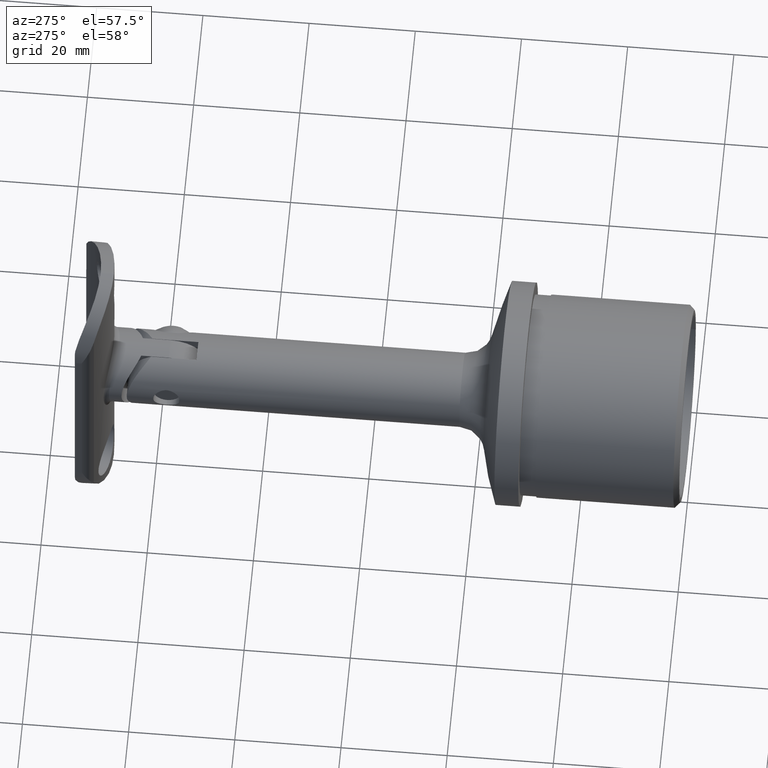
[diagram: clean part render]
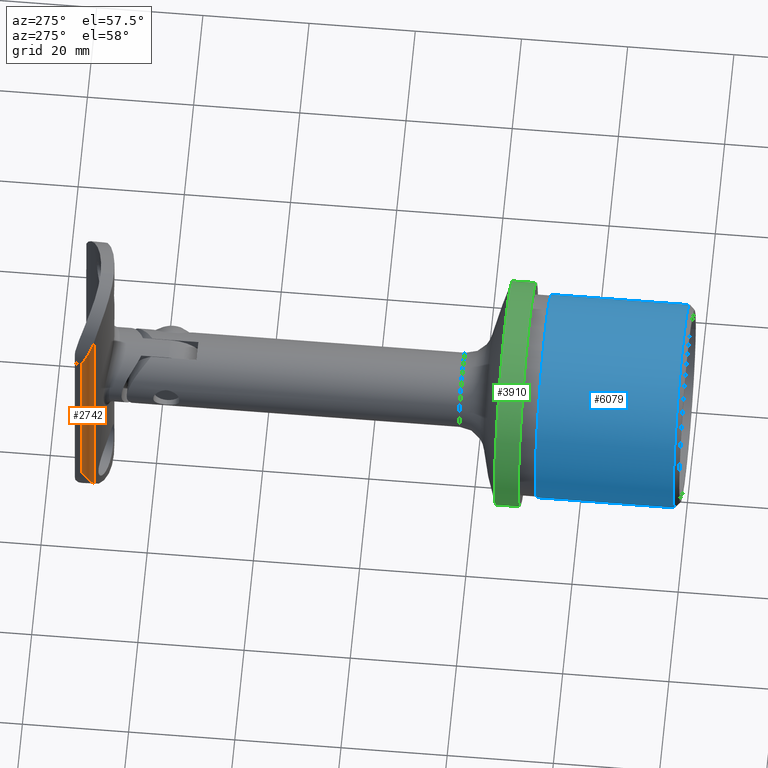
[diagram: same view with three faces highlighted in distinct colors, each labeled with its STEP entity id]
A machine part, auxiliary view with three faces highlighted in distinct colors.
Their STEP definitions:

[orange] entity #2742 — the highlighted cylindrical surface (edge-blend (fillet) strip) has radius 2.5 mm, axis along (-0, -0, -1).
#786 = CARTESIAN_POINT ( 'NONE',  ( -12.49999999999999822, 4.794987841692083919, -19.47337140423151780 ) ) ;
#899 = CARTESIAN_POINT ( 'NONE',  ( -11.40638105405752434, 2.923791834929124533, -24.13830932038523258 ) ) ;
#967 = CARTESIAN_POINT ( 'NONE',  ( -11.92967504011799207, 3.400286981363787486, 22.76441849119572325 ) ) ;
#1281 = VERTEX_POINT ( 'NONE', #6884 ) ;
#1647 = ORIENTED_EDGE ( 'NONE', *, *, #13596, .T. ) ;
#1913 = EDGE_CURVE ( 'NONE', #9623, #8205, #6051, .T. ) ;
#2061 = CARTESIAN_POINT ( 'NONE',  ( -12.28333152114375082, 3.965015650576368511, -21.36649920857138341 ) ) ;
#2742 = ADVANCED_FACE ( 'NONE', ( #11199 ), #10652, .T. ) ;
#2997 = DIRECTION ( 'NONE',  ( -0.000000000000000000, -0.000000000000000000, -1.000000000000000000 ) ) ;
#3266 = CARTESIAN_POINT ( 'NONE',  ( -12.36503220955341575, 4.168564775691902646, 20.89264939591394210 ) ) ;
#3390 = CARTESIAN_POINT ( 'NONE',  ( -12.49999999999999645, 5.006685687123313855, 31.50000000000000000 ) ) ;
#3827 = CARTESIAN_POINT ( 'NONE',  ( -11.17924528301885978, 2.802285414378435924, 24.59235861708639703 ) ) ;
#3845 = B_SPLINE_CURVE_WITH_KNOTS ( 'NONE', 3,
 ( #9312, #786, #11607, #11486, #2061, #5631, #10392, #11703, #899, #5746 ),
 .UNSPECIFIED., .F., .F.,
 ( 4, 2, 2, 2, 4 ),
 ( -2.236068598631906190E-05, 0.001533295713240233641, 0.003088952112466786595, 0.004644608511693338465, 0.006200264910919890335 ),
 .UNSPECIFIED. ) ;
#4125 = CARTESIAN_POINT ( 'NONE',  ( -9.999999999999994671, 5.006685687123313855, 31.50000000000000000 ) ) ;
#4545 = CARTESIAN_POINT ( 'NONE',  ( -12.28334954160289527, 3.965053949932768163, 21.36640832990507022 ) ) ;
#5434 = AXIS2_PLACEMENT_3D ( 'NONE', #4125, #2997, #7649 ) ;
#5543 = CARTESIAN_POINT ( 'NONE',  ( -11.17924528301885978, 2.802285414378435924, 24.59235861708639703 ) ) ;
#5631 = CARTESIAN_POINT ( 'NONE',  ( -12.06559692858170862, 3.581207301064043502, -22.30180594818838102 ) ) ;
#5701 = CARTESIAN_POINT ( 'NONE',  ( -11.40638732152775781, 2.923795187716187183, 24.13829679157727526 ) ) ;
#5746 = CARTESIAN_POINT ( 'NONE',  ( -11.17924528301885978, 2.802285414378435924, -24.59235861708640059 ) ) ;
#5766 = CARTESIAN_POINT ( 'NONE',  ( -12.49999999999999822, 4.954163077805698201, 19.11744428138103302 ) ) ;
#6051 = LINE ( 'NONE', #3390, #13525 ) ;
#6083 = LINE ( 'NONE', #10570, #8905 ) ;
#6756 = CARTESIAN_POINT ( 'NONE',  ( -12.49999999999999645, 5.006685687123313855, -19.00000000000000355 ) ) ;
#6796 = CARTESIAN_POINT ( 'NONE',  ( -12.06561495597839695, 3.581232545592840211, 22.30174197645887091 ) ) ;
#6884 = CARTESIAN_POINT ( 'NONE',  ( -11.17924528301885978, 2.802285414378435924, -24.59235861708640059 ) ) ;
#7073 = DIRECTION ( 'NONE',  ( -0.000000000000000000, -0.000000000000000000, -1.000000000000000000 ) ) ;
#7649 = DIRECTION ( 'NONE',  ( -1.000000000000000000, 0.000000000000000000, 0.000000000000000000 ) ) ;
#7970 = CARTESIAN_POINT ( 'NONE',  ( -12.49831277919190065, 4.900633578918091260, 19.23713970776271509 ) ) ;
#8032 = CARTESIAN_POINT ( 'NONE',  ( -12.49999999999999645, 5.006685687123313855, 19.00000000000000000 ) ) ;
#8205 = VERTEX_POINT ( 'NONE', #6756 ) ;
#8905 = VECTOR ( 'NONE', #7073, 1000.000000000000000 ) ;
#9312 = CARTESIAN_POINT ( 'NONE',  ( -12.49999999999999645, 5.006685687123313855, -19.00000000000000355 ) ) ;
#9498 = EDGE_LOOP ( 'NONE', ( #11986, #14295, #12716, #1647 ) ) ;
#9623 = VERTEX_POINT ( 'NONE', #11773 ) ;
#10392 = CARTESIAN_POINT ( 'NONE',  ( -11.92965845210156850, 3.400267916275091284, -22.76446936155749157 ) ) ;
#10570 = CARTESIAN_POINT ( 'NONE',  ( -11.17924528301885978, 2.802285414378435924, 31.50000000000000000 ) ) ;
#10652 = CYLINDRICAL_SURFACE ( 'NONE', #5434, 2.500000000000000444 ) ;
#11093 = B_SPLINE_CURVE_WITH_KNOTS ( 'NONE', 3,
 ( #5543, #5701, #15150, #967, #6796, #4545, #3266, #15199, #12874, #13956, #12920, #7970, #5766, #8032 ),
 .UNSPECIFIED., .F., .F.,
 ( 4, 2, 2, 2, 2, 2, 4 ),
 ( 0.000000000000000000, 0.001543844399976579580, 0.003087688799953159161, 0.004631533199929738741, 0.005403455399918028965, 0.005789416499912177980, 0.006175377599906327862 ),
 .UNSPECIFIED. ) ;
#11199 = FACE_OUTER_BOUND ( 'NONE', #9498, .T. ) ;
#11486 = CARTESIAN_POINT ( 'NONE',  ( -12.36501576994846907, 4.168519786438777075, -20.89275360763564038 ) ) ;
#11607 = CARTESIAN_POINT ( 'NONE',  ( -12.47307964431479732, 4.582776802985386588, -19.94784777093789074 ) ) ;
#11703 = CARTESIAN_POINT ( 'NONE',  ( -11.59999228341693289, 3.071696155040441578, -23.68275126208634518 ) ) ;
#11773 = CARTESIAN_POINT ( 'NONE',  ( -12.49999999999999645, 5.006685687123313855, 19.00000000000000000 ) ) ;
#11986 = ORIENTED_EDGE ( 'NONE', *, *, #1913, .T. ) ;
#12716 = ORIENTED_EDGE ( 'NONE', *, *, #14573, .F. ) ;
#12874 = CARTESIAN_POINT ( 'NONE',  ( -12.46628496188731106, 4.583939871958452983, 19.94759394247417106 ) ) ;
#12920 = CARTESIAN_POINT ( 'NONE',  ( -12.49156585855732970, 4.794757952270542134, 19.47417293135978866 ) ) ;
#12979 = DIRECTION ( 'NONE',  ( -0.000000000000000000, -0.000000000000000000, -1.000000000000000000 ) ) ;
#13380 = VERTEX_POINT ( 'NONE', #3827 ) ;
#13525 = VECTOR ( 'NONE', #12979, 1000.000000000000000 ) ;
#13596 = EDGE_CURVE ( 'NONE', #13380, #9623, #11093, .T. ) ;
#13956 = CARTESIAN_POINT ( 'NONE',  ( -12.48650828895286402, 4.741930303162162907, 19.59258713081638348 ) ) ;
#14295 = ORIENTED_EDGE ( 'NONE', *, *, #15491, .T. ) ;
#14573 = EDGE_CURVE ( 'NONE', #13380, #1281, #6083, .T. ) ;
#15150 = CARTESIAN_POINT ( 'NONE',  ( -11.60000298519503481, 3.071704289360729145, 23.68272611660524873 ) ) ;
#15199 = CARTESIAN_POINT ( 'NONE',  ( -12.44607558263661495, 4.479267212257425967, 20.18395034147691902 ) ) ;
#15491 = EDGE_CURVE ( 'NONE', #8205, #1281, #3845, .T. ) ;

[blue] entity #6079 — the highlighted cylindrical surface (bore or boss wall) has radius 19.15 mm, axis along (-0, -1, -0).
#309 = FACE_OUTER_BOUND ( 'NONE', #7266, .T. ) ;
#863 = AXIS2_PLACEMENT_3D ( 'NONE', #3147, #2158, #14083 ) ;
#1078 = CYLINDRICAL_SURFACE ( 'NONE', #5249, 19.15000000000000568 ) ;
#1236 = CARTESIAN_POINT ( 'NONE',  ( 19.14999999999999858, 0.9999999999999991118, 0.000000000000000000 ) ) ;
#2158 = DIRECTION ( 'NONE',  ( -9.504096526716212841E-17, -1.000000000000000000, -0.000000000000000000 ) ) ;
#2171 = VERTEX_POINT ( 'NONE', #6180 ) ;
#3064 = EDGE_LOOP ( 'NONE', ( #11901 ) ) ;
#3147 = CARTESIAN_POINT ( 'NONE',  ( -9.884260387784860566E-15, 1.000000000000000888, 0.000000000000000000 ) ) ;
#3836 = CIRCLE ( 'NONE', #5946, 19.15000000000000213 ) ;
#4437 = CARTESIAN_POINT ( 'NONE',  ( -7.413195290838646608E-15, 27.00000000000000355, 0.000000000000000000 ) ) ;
#5249 = AXIS2_PLACEMENT_3D ( 'NONE', #10928, #9848, #6226 ) ;
#5946 = AXIS2_PLACEMENT_3D ( 'NONE', #4437, #9207, #10496 ) ;
#6079 = ADVANCED_FACE ( 'NONE', ( #309, #14678 ), #1078, .T. ) ;
#6180 = CARTESIAN_POINT ( 'NONE',  ( 19.14999999999999858, 27.00000000000000000, 0.000000000000000000 ) ) ;
#6226 = DIRECTION ( 'NONE',  ( 1.000000000000000000, 0.000000000000000000, 0.000000000000000000 ) ) ;
#6257 = CIRCLE ( 'NONE', #863, 19.15000000000000568 ) ;
#6782 = ORIENTED_EDGE ( 'NONE', *, *, #15463, .T. ) ;
#7266 = EDGE_LOOP ( 'NONE', ( #6782 ) ) ;
#9207 = DIRECTION ( 'NONE',  ( -9.504096526716212841E-17, -1.000000000000000000, -0.000000000000000000 ) ) ;
#9848 = DIRECTION ( 'NONE',  ( -9.504096526716212841E-17, -1.000000000000000000, -0.000000000000000000 ) ) ;
#10496 = DIRECTION ( 'NONE',  ( 1.000000000000000000, -1.811721645928780062E-16, 0.000000000000000000 ) ) ;
#10928 = CARTESIAN_POINT ( 'NONE',  ( -6.671875761754781474E-15, 34.79999999999999716, 0.000000000000000000 ) ) ;
#11289 = VERTEX_POINT ( 'NONE', #1236 ) ;
#11901 = ORIENTED_EDGE ( 'NONE', *, *, #15417, .F. ) ;
#14083 = DIRECTION ( 'NONE',  ( 1.000000000000000000, -9.058608229643899078E-17, 0.000000000000000000 ) ) ;
#14678 = FACE_OUTER_BOUND ( 'NONE', #3064, .T. ) ;
#15417 = EDGE_CURVE ( 'NONE', #11289, #11289, #6257, .T. ) ;
#15463 = EDGE_CURVE ( 'NONE', #2171, #2171, #3836, .T. ) ;

[green] entity #3910 — the highlighted cylindrical surface (bore or boss wall) has radius 21.2 mm, axis along (-0, -1, -0).
#359 = AXIS2_PLACEMENT_3D ( 'NONE', #943, #11639, #2146 ) ;
#713 = EDGE_CURVE ( 'NONE', #7570, #7570, #7395, .T. ) ;
#943 = CARTESIAN_POINT ( 'NONE',  ( -6.671875761754781474E-15, 34.79999999999999716, 0.000000000000000000 ) ) ;
#1244 = ORIENTED_EDGE ( 'NONE', *, *, #713, .T. ) ;
#1770 = CIRCLE ( 'NONE', #13744, 21.20000000000000995 ) ;
#2146 = DIRECTION ( 'NONE',  ( 1.000000000000000000, 0.000000000000000000, 0.000000000000000000 ) ) ;
#2608 = ORIENTED_EDGE ( 'NONE', *, *, #2980, .F. ) ;
#2980 = EDGE_CURVE ( 'NONE', #11117, #11117, #1770, .T. ) ;
#3910 = ADVANCED_FACE ( 'NONE', ( #12280, #7815 ), #11544, .T. ) ;
#4172 = DIRECTION ( 'NONE',  ( 1.000000000000000000, 0.000000000000000000, 0.000000000000000000 ) ) ;
#4944 = EDGE_LOOP ( 'NONE', ( #2608 ) ) ;
#7395 = CIRCLE ( 'NONE', #10039, 21.19999999999999929 ) ;
#7570 = VERTEX_POINT ( 'NONE', #13879 ) ;
#7815 = FACE_OUTER_BOUND ( 'NONE', #4944, .T. ) ;
#8653 = DIRECTION ( 'NONE',  ( -9.504096526716212841E-17, -1.000000000000000000, -0.000000000000000000 ) ) ;
#9005 = DIRECTION ( 'NONE',  ( -9.504096526716212841E-17, -1.000000000000000000, -0.000000000000000000 ) ) ;
#10039 = AXIS2_PLACEMENT_3D ( 'NONE', #10090, #9005, #4172 ) ;
#10090 = CARTESIAN_POINT ( 'NONE',  ( -6.700388051334928919E-15, 34.50000000000000000, 0.000000000000000000 ) ) ;
#11117 = VERTEX_POINT ( 'NONE', #15241 ) ;
#11544 = CYLINDRICAL_SURFACE ( 'NONE', #359, 21.20000000000000284 ) ;
#11639 = DIRECTION ( 'NONE',  ( -9.504096526716212841E-17, -1.000000000000000000, -0.000000000000000000 ) ) ;
#12280 = FACE_OUTER_BOUND ( 'NONE', #15359, .T. ) ;
#13321 = DIRECTION ( 'NONE',  ( 1.000000000000000000, -1.636531581110194670E-16, 0.000000000000000000 ) ) ;
#13744 = AXIS2_PLACEMENT_3D ( 'NONE', #14574, #8653, #13321 ) ;
#13879 = CARTESIAN_POINT ( 'NONE',  ( 21.19999999999999218, 34.50000000000000000, 0.000000000000000000 ) ) ;
#14574 = CARTESIAN_POINT ( 'NONE',  ( -7.128072395037157955E-15, 30.00000000000000711, 0.000000000000000000 ) ) ;
#15241 = CARTESIAN_POINT ( 'NONE',  ( 21.20000000000000284, 30.00000000000000355, 0.000000000000000000 ) ) ;
#15359 = EDGE_LOOP ( 'NONE', ( #1244 ) ) ;